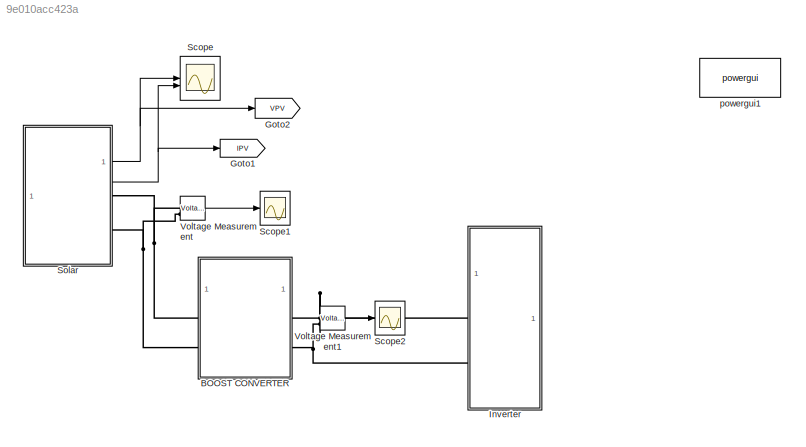
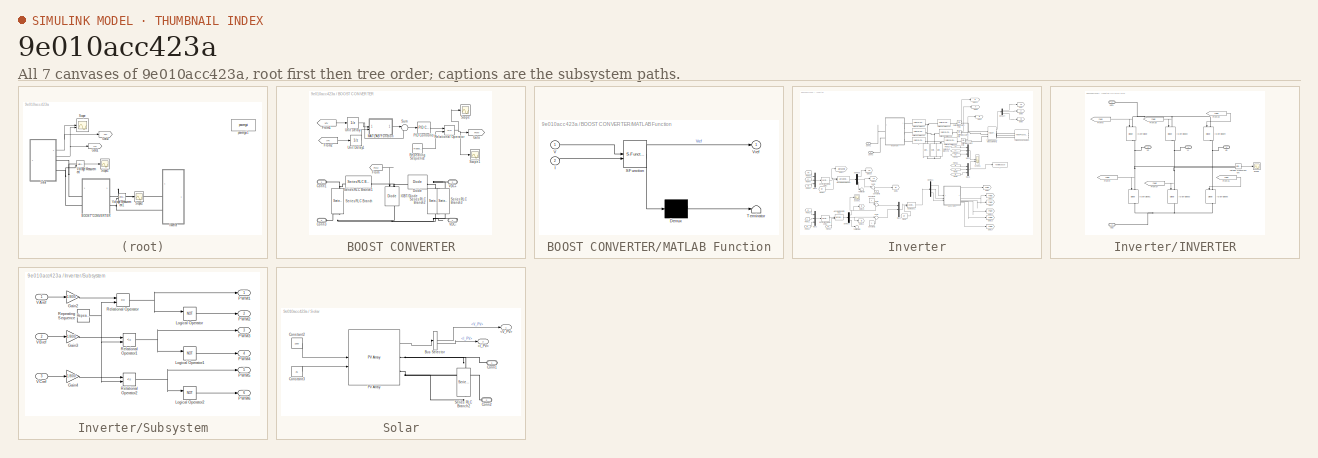
[diagram: thumbnail index - all 7 canvases of the model, root first then tree order]
MODEL slx_9e010acc423a
KIND model
CONFIG AbsTol = auto
CONFIG EnableMultiTasking = off
CONFIG FixedStep = auto
CONFIG MaxStep = auto
CONFIG MinStep = auto
CONFIG RelTol = 1e-3
CONFIG SampleTimeConstraint = Unconstrained
CONFIG SolverName = VariableStepAuto
CONFIG StartTime = 0.0
CONFIG StopTime = 1
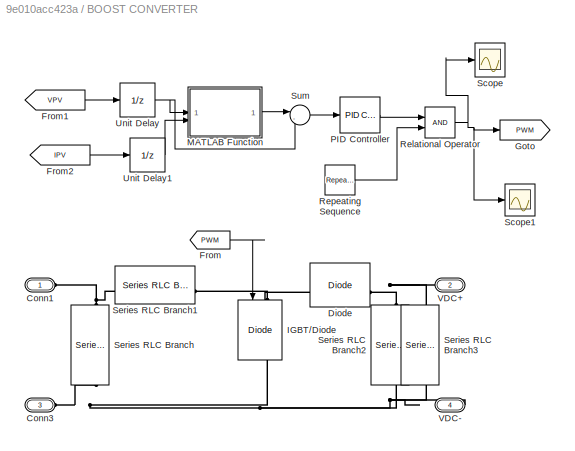
BLOCK [SubSystem] BOOST CONVERTER
BLOCK [PMIOPort] BOOST CONVERTER/Conn1
  Side = Left
BLOCK [PMIOPort] BOOST CONVERTER/Conn3
  Port = 3
  Side = Left
BLOCK [Reference] BOOST CONVERTER/Diode  REF=spsDiodeLib/Diode
  SourceBlock = spsDiodeLib/Diode
  SourceType = Diode
BLOCK [From] BOOST CONVERTER/From
  GotoTag = PWM
BLOCK [From] BOOST CONVERTER/From1
  GotoTag = VPV
  TagVisibility = global
BLOCK [From] BOOST CONVERTER/From2
  GotoTag = IPV
  TagVisibility = global
BLOCK [Goto] BOOST CONVERTER/Goto
  GotoTag = PWM
BLOCK [Reference] BOOST CONVERTER/IGBT//Diode  REF=spsIGBTDiodeLib/IGBT//Diode
  NameLocation = left
  SourceBlock = spsIGBTDiodeLib/IGBT//Diode
  SourceType = IGBT/Diode
BLOCK [SubSystem] BOOST CONVERTER/MATLAB Function
  ErrorFcn = Stateflow.Translate.translate
  PermitHierarchicalResolution = ExplicitOnly
  SFBlockType = MATLAB Function
  TreatAsAtomicUnit = on
BLOCK [Demux] BOOST CONVERTER/MATLAB Function/ Demux 
  Outputs = 1
BLOCK [S-Function] BOOST CONVERTER/MATLAB Function/ SFunction 
  EnableBusSupport = on
  FunctionName = sf_sfun
  PortCounts = [2 2]
  SFcnIsStateOwnerBlock = off
  SFunctionDeploymentMode = off
  Tag = Stateflow S-Function 3
BLOCK [Terminator] BOOST CONVERTER/MATLAB Function/ Terminator 
BLOCK [Inport] BOOST CONVERTER/MATLAB Function/I
  Port = 2
BLOCK [Inport] BOOST CONVERTER/MATLAB Function/V
BLOCK [Outport] BOOST CONVERTER/MATLAB Function/Vref
BLOCK [Reference] BOOST CONVERTER/PID Controller  REF=slpidlib/PID Controller
  SourceBlock = slpidlib/PID Controller
  SourceType = PID 1dof
BLOCK [RelationalOperator] BOOST CONVERTER/Relational Operator
  InputSameDT = off
  OutDataTypeStr = boolean
  RndMeth = Simplest
BLOCK [Reference] BOOST CONVERTER/Repeating Sequence  REF=simulink/Sources/Repeating
Sequence
  SourceBlock = simulink/Sources/Repeating\nSequence
  SourceType = Repeating table
BLOCK [Scope] BOOST CONVERTER/Scope
  Floating = off
  NumInputPorts = 1
  ScopeSpecificationString = Simulink.scopes.TimeScopeBlockCfg('CurrentConfiguration', extmgr.ConfigurationSet(extmgr.Configuration('Core','General UI',true,'FigureColor',[0.8 0.8 0.8]),extmgr.Configuration('Core','Source UI',true),extmgr.Configuration('Sources','WiredSimulink',true,'DataLoggingVariableName','ScopeData1'),extmgr.Configuration('Visuals','Time Domain',true,'TimeAxisLabels','All','SerializedDisplays',{struct('Mi...<+2594ch>
BLOCK [Scope] BOOST CONVERTER/Scope1
  Floating = off
  NumInputPorts = 1
  ScopeSpecificationString = Simulink.scopes.TimeScopeBlockCfg('CurrentConfiguration', extmgr.ConfigurationSet(extmgr.Configuration('Core','General UI',true,'FigureColor',[1 1 1]),extmgr.Configuration('Core','Source UI',true),extmgr.Configuration('Sources','WiredSimulink',true,'DataLoggingVariableName','ScopeData3'),extmgr.Configuration('Visuals','Time Domain',true,'TimeAxisLabels','All','SerializedDisplays',{struct('MinYLimR...<+1689ch>
BLOCK [Reference] BOOST CONVERTER/Series RLC Branch  REF=spsSeriesRLCBranchLib/Series RLC Branch
  NameLocation = left
  SourceBlock = spsSeriesRLCBranchLib/Series RLC Branch
  SourceType = Series RLC Branch
BLOCK [Reference] BOOST CONVERTER/Series RLC Branch1  REF=spsSeriesRLCBranchLib/Series RLC Branch
  NameLocation = top
  SourceBlock = spsSeriesRLCBranchLib/Series RLC Branch
  SourceType = Series RLC Branch
BLOCK [Reference] BOOST CONVERTER/Series RLC Branch2  REF=spsSeriesRLCBranchLib/Series RLC Branch
  NameLocation = right
  SourceBlock = spsSeriesRLCBranchLib/Series RLC Branch
  SourceType = Series RLC Branch
BLOCK [Reference] BOOST CONVERTER/Series RLC Branch3  REF=spsSeriesRLCBranchLib/Series RLC Branch
  NameLocation = right
  SourceBlock = spsSeriesRLCBranchLib/Series RLC Branch
  SourceType = Series RLC Branch
BLOCK [Sum] BOOST CONVERTER/Sum
  Inputs = |-+
BLOCK [UnitDelay] BOOST CONVERTER/Unit Delay
  HasFrameUpgradeWarning = on
  SampleTime = 1e-06
BLOCK [UnitDelay] BOOST CONVERTER/Unit Delay1
  HasFrameUpgradeWarning = on
  SampleTime = 1e-06
BLOCK [PMIOPort] BOOST CONVERTER/VDC+
  NameLocation = top
  Port = 2
  Side = Right
BLOCK [PMIOPort] BOOST CONVERTER/VDC-
  NameLocation = top
  Port = 4
  Side = Right
BLOCK [Goto] Goto1
  GotoTag = IPV
  TagVisibility = global
BLOCK [Goto] Goto2
  GotoTag = VPV
  TagVisibility = global
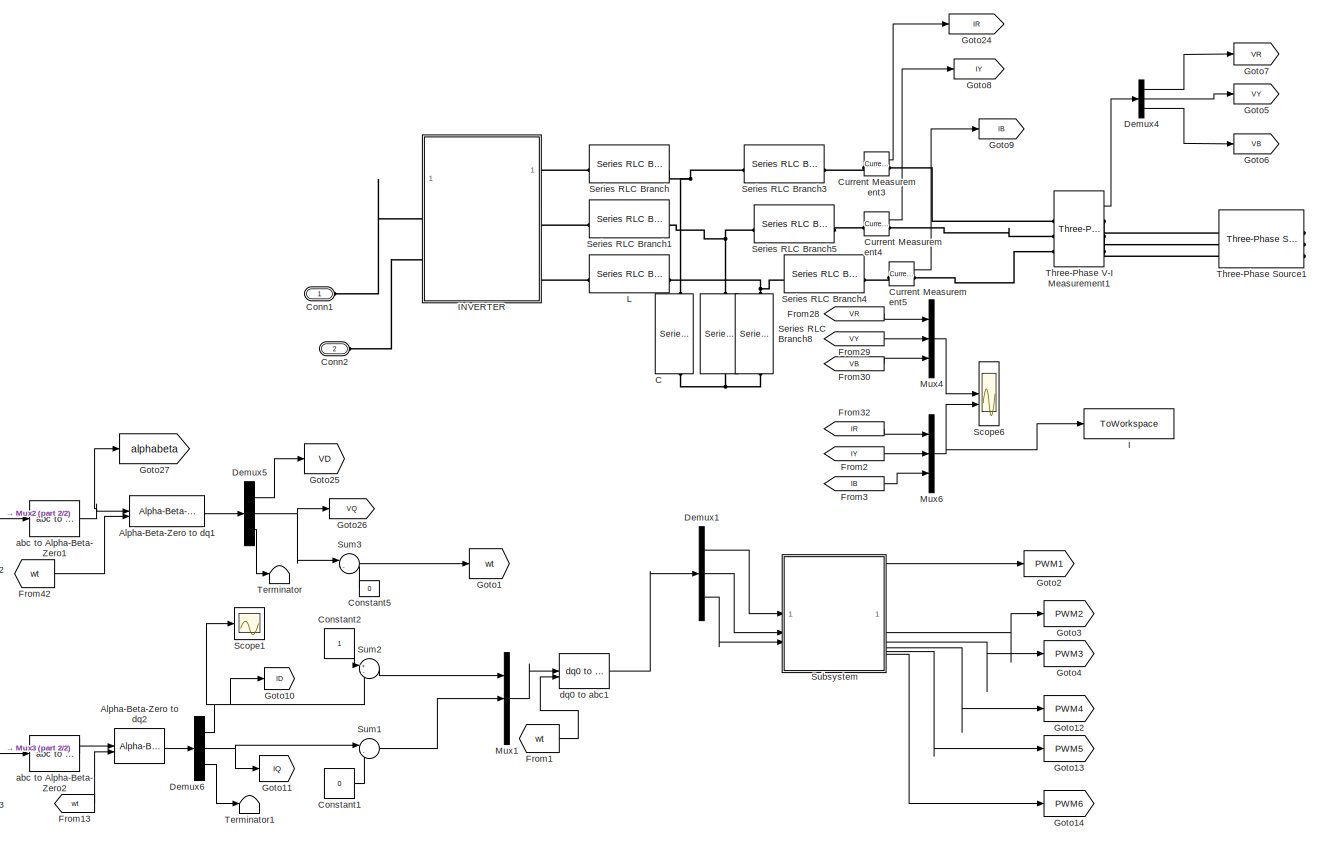
[diagram: Inverter - part 1/2, most of the canvas]
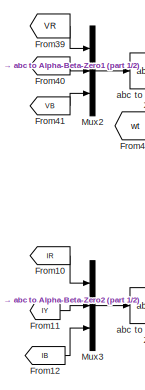
[diagram: Inverter - part 2/2, bottom left region]
BLOCK [SubSystem] Inverter
BLOCK [Reference] Inverter/   REF=spsSeriesRLCBranchLib/Series RLC Branch
  NameLocation = left
  SourceBlock = spsSeriesRLCBranchLib/Series RLC Branch
  SourceType = Series RLC Branch
BLOCK [Reference] Inverter/    C  REF=spsSeriesRLCBranchLib/Series RLC Branch
  NameLocation = left
  SourceBlock = spsSeriesRLCBranchLib/Series RLC Branch
  SourceType = Series RLC Branch
BLOCK [Reference] Inverter/Alpha-Beta-Zero to dq1  REF=spsAlphaBetaZerotodq0Lib/Alpha-Beta-Zero
to dq0
  SourceBlock = spsAlphaBetaZerotodq0Lib/Alpha-Beta-Zero\nto dq0
  SourceType = Alpha-Beta-Zero to dq0 Transformation
BLOCK [Reference] Inverter/Alpha-Beta-Zero to dq2  REF=spsAlphaBetaZerotodq0Lib/Alpha-Beta-Zero
to dq0
  SourceBlock = spsAlphaBetaZerotodq0Lib/Alpha-Beta-Zero\nto dq0
  SourceType = Alpha-Beta-Zero to dq0 Transformation
BLOCK [PMIOPort] Inverter/Conn1
  Side = Left
BLOCK [PMIOPort] Inverter/Conn2
  Port = 2
  Side = Left
BLOCK [Constant] Inverter/Constant1
  Value = 0
BLOCK [Constant] Inverter/Constant2
BLOCK [Constant] Inverter/Constant5
  Value = 0
BLOCK [Reference] Inverter/Current Measurement3  REF=spsCurrentMeasurementLib/Current Measurement
  SourceBlock = spsCurrentMeasurementLib/Current Measurement
  SourceType = Current Measurement
  UserDataPersistent = on
BLOCK [Reference] Inverter/Current Measurement4  REF=spsCurrentMeasurementLib/Current Measurement
  SourceBlock = spsCurrentMeasurementLib/Current Measurement
  SourceType = Current Measurement
  UserDataPersistent = on
BLOCK [Reference] Inverter/Current Measurement5  REF=spsCurrentMeasurementLib/Current Measurement
  SourceBlock = spsCurrentMeasurementLib/Current Measurement
  SourceType = Current Measurement
  UserDataPersistent = on
BLOCK [Demux] Inverter/Demux1
  Outputs = 3
BLOCK [Demux] Inverter/Demux4
  Outputs = 3
BLOCK [Demux] Inverter/Demux5
  Outputs = 3
BLOCK [Demux] Inverter/Demux6
  Outputs = 3
BLOCK [From] Inverter/From1
  GotoTag = wt
BLOCK [From] Inverter/From10
  GotoTag = IR
  TagVisibility = global
BLOCK [From] Inverter/From11
  GotoTag = IY
  TagVisibility = global
BLOCK [From] Inverter/From12
  GotoTag = IB
  TagVisibility = global
BLOCK [From] Inverter/From13
  GotoTag = wt
BLOCK [From] Inverter/From2
  GotoTag = IY
  TagVisibility = global
BLOCK [From] Inverter/From28
  GotoTag = VR
  TagVisibility = global
BLOCK [From] Inverter/From29
  GotoTag = VY
  TagVisibility = global
BLOCK [From] Inverter/From3
  GotoTag = IB
  TagVisibility = global
BLOCK [From] Inverter/From30
  GotoTag = VB
  TagVisibility = global
BLOCK [From] Inverter/From32
  GotoTag = IR
  TagVisibility = global
BLOCK [From] Inverter/From39
  GotoTag = VR
  TagVisibility = global
BLOCK [From] Inverter/From40
  GotoTag = VY
  TagVisibility = global
BLOCK [From] Inverter/From41
  GotoTag = VB
  TagVisibility = global
BLOCK [From] Inverter/From42
  GotoTag = wt
BLOCK [Goto] Inverter/Goto1
  GotoTag = wt
BLOCK [Goto] Inverter/Goto10
  GotoTag = ID
BLOCK [Goto] Inverter/Goto11
  GotoTag = IQ
BLOCK [Goto] Inverter/Goto12
  GotoTag = PWM4
BLOCK [Goto] Inverter/Goto13
  GotoTag = PWM5
BLOCK [Goto] Inverter/Goto14
  GotoTag = PWM6
BLOCK [Goto] Inverter/Goto2
  GotoTag = PWM1
BLOCK [Goto] Inverter/Goto24
  GotoTag = IR
  TagVisibility = global
BLOCK [Goto] Inverter/Goto25
  GotoTag = VD
BLOCK [Goto] Inverter/Goto26
  GotoTag = VQ
BLOCK [Goto] Inverter/Goto27
  GotoTag = alphabeta
BLOCK [Goto] Inverter/Goto3
  GotoTag = PWM2
BLOCK [Goto] Inverter/Goto4
  GotoTag = PWM3
BLOCK [Goto] Inverter/Goto5
  GotoTag = VY
  TagVisibility = global
BLOCK [Goto] Inverter/Goto6
  GotoTag = VB
  TagVisibility = global
BLOCK [Goto] Inverter/Goto7
  GotoTag = VR
  TagVisibility = global
BLOCK [Goto] Inverter/Goto8
  GotoTag = IY
  TagVisibility = global
BLOCK [Goto] Inverter/Goto9
  GotoTag = IB
  TagVisibility = global
BLOCK [ToWorkspace] Inverter/I
  FixptAsFi = on
  MaxDataPoints = inf
  SampleTime = -1
  SaveFormat = Timeseries
  VariableName = simout
BLOCK [SubSystem] Inverter/INVERTER
BLOCK [From] Inverter/INVERTER/From20
  GotoTag = PWM3
BLOCK [From] Inverter/INVERTER/From31
  GotoTag = PWM4
BLOCK [From] Inverter/INVERTER/From37
  GotoTag = PWM6
BLOCK [From] Inverter/INVERTER/From38
  GotoTag = PWM5
BLOCK [From] Inverter/INVERTER/From8
  GotoTag = PWM1
BLOCK [From] Inverter/INVERTER/From9
  GotoTag = PWM2
BLOCK [Reference] Inverter/INVERTER/IGBT//Diode  REF=spsIGBTDiodeLib/IGBT//Diode
  NameLocation = left
  SourceBlock = spsIGBTDiodeLib/IGBT//Diode
  SourceType = IGBT/Diode
BLOCK [Reference] Inverter/INVERTER/IGBT//Diode1  REF=spsIGBTDiodeLib/IGBT//Diode
  NameLocation = left
  SourceBlock = spsIGBTDiodeLib/IGBT//Diode
  SourceType = IGBT/Diode
BLOCK [Reference] Inverter/INVERTER/IGBT//Diode2  REF=spsIGBTDiodeLib/IGBT//Diode
  NameLocation = left
  SourceBlock = spsIGBTDiodeLib/IGBT//Diode
  SourceType = IGBT/Diode
BLOCK [Reference] Inverter/INVERTER/IGBT//Diode3  REF=spsIGBTDiodeLib/IGBT//Diode
  NameLocation = left
  SourceBlock = spsIGBTDiodeLib/IGBT//Diode
  SourceType = IGBT/Diode
BLOCK [Reference] Inverter/INVERTER/IGBT//Diode4  REF=spsIGBTDiodeLib/IGBT//Diode
  NameLocation = left
  SourceBlock = spsIGBTDiodeLib/IGBT//Diode
  SourceType = IGBT/Diode
BLOCK [Reference] Inverter/INVERTER/IGBT//Diode5  REF=spsIGBTDiodeLib/IGBT//Diode
  NameLocation = left
  SourceBlock = spsIGBTDiodeLib/IGBT//Diode
  SourceType = IGBT/Diode
BLOCK [Scope] Inverter/INVERTER/Scope
  Floating = off
  NumInputPorts = 1
  ScopeSpecificationString = Simulink.scopes.TimeScopeBlockCfg('CurrentConfiguration', extmgr.ConfigurationSet(extmgr.Configuration('Core','General UI',true,'FigureColor',[0.8 0.8 0.8]),extmgr.Configuration('Core','Source UI',true),extmgr.Configuration('Sources','WiredSimulink',true,'DataLoggingVariableName','ScopeData2'),extmgr.Configuration('Visuals','Time Domain',true,'TimeAxisLabels','All','SerializedDisplays',{struct('Mi...<+2425ch>
BLOCK [PMIOPort] Inverter/INVERTER/VB
  NameLocation = top
  Port = 5
  Side = Right
BLOCK [PMIOPort] Inverter/INVERTER/VDC+
  Side = Left
BLOCK [PMIOPort] Inverter/INVERTER/VDC-
  Port = 2
  Side = Left
BLOCK [PMIOPort] Inverter/INVERTER/VR
  NameLocation = top
  Port = 3
  Side = Right
BLOCK [PMIOPort] Inverter/INVERTER/VY
  NameLocation = top
  Port = 4
  Side = Right
BLOCK [Reference] Inverter/INVERTER/Voltage Measurement  REF=spsVoltageMeasurementLib/Voltage Measurement
  SourceBlock = spsVoltageMeasurementLib/Voltage Measurement
  SourceType = Voltage Measurement
  UserDataPersistent = on
BLOCK [Reference] Inverter/L  REF=spsSeriesRLCBranchLib/Series RLC Branch
  SourceBlock = spsSeriesRLCBranchLib/Series RLC Branch
  SourceType = Series RLC Branch
BLOCK [Mux] Inverter/Mux1
  DisplayOption = bar
  Inputs = 3
BLOCK [Mux] Inverter/Mux2
  DisplayOption = bar
  Inputs = 3
BLOCK [Mux] Inverter/Mux3
  DisplayOption = bar
  Inputs = 3
BLOCK [Mux] Inverter/Mux4
  DisplayOption = bar
  Inputs = 3
BLOCK [Mux] Inverter/Mux6
  DisplayOption = bar
  Inputs = 3
BLOCK [Scope] Inverter/Scope1
  Floating = off
  NumInputPorts = 1
  ScopeSpecificationString = Simulink.scopes.TimeScopeBlockCfg('CurrentConfiguration', extmgr.ConfigurationSet(extmgr.Configuration('Core','General UI',true,'FigureColor',[0.8 0.8 0.8]),extmgr.Configuration('Core','Source UI',true),extmgr.Configuration('Sources','WiredSimulink',true,'DataLoggingVariableName','ScopeData2'),extmgr.Configuration('Visuals','Time Domain',true,'SerializedDisplays',{struct('MinYLimReal','-0.6946','M...<+2437ch>
BLOCK [Scope] Inverter/Scope6
  Floating = off
  NumInputPorts = 2
  ScopeSpecificationString = Simulink.scopes.TimeScopeBlockCfg('CurrentConfiguration', extmgr.ConfigurationSet(extmgr.Configuration('Core','General UI',true,'FigureColor',[0.831372549019608 0.815686274509804 0.784313725490196]),extmgr.Configuration('Core','Source UI',true),extmgr.Configuration('Sources','WiredSimulink',true,'DataLoggingVariableName','ScopeData1','DataLogging',true,'DataLoggingLimitDataPoints',true,'DataLoggin...<+3200ch>
BLOCK [Reference] Inverter/Series RLC Branch  REF=spsSeriesRLCBranchLib/Series RLC Branch
  SourceBlock = spsSeriesRLCBranchLib/Series RLC Branch
  SourceType = Series RLC Branch
BLOCK [Reference] Inverter/Series RLC Branch1  REF=spsSeriesRLCBranchLib/Series RLC Branch
  SourceBlock = spsSeriesRLCBranchLib/Series RLC Branch
  SourceType = Series RLC Branch
BLOCK [Reference] Inverter/Series RLC Branch3  REF=spsSeriesRLCBranchLib/Series RLC Branch
  SourceBlock = spsSeriesRLCBranchLib/Series RLC Branch
  SourceType = Series RLC Branch
BLOCK [Reference] Inverter/Series RLC Branch4  REF=spsSeriesRLCBranchLib/Series RLC Branch
  SourceBlock = spsSeriesRLCBranchLib/Series RLC Branch
  SourceType = Series RLC Branch
BLOCK [Reference] Inverter/Series RLC Branch5  REF=spsSeriesRLCBranchLib/Series RLC Branch
  SourceBlock = spsSeriesRLCBranchLib/Series RLC Branch
  SourceType = Series RLC Branch
BLOCK [Reference] Inverter/Series RLC Branch8  REF=spsSeriesRLCBranchLib/Series RLC Branch
  NameLocation = left
  SourceBlock = spsSeriesRLCBranchLib/Series RLC Branch
  SourceType = Series RLC Branch
BLOCK [SubSystem] Inverter/Subsystem
BLOCK [Gain] Inverter/Subsystem/Gain2
  Gain = 1/800
BLOCK [Gain] Inverter/Subsystem/Gain3
  Gain = 1/800
BLOCK [Gain] Inverter/Subsystem/Gain4
  Gain = 1/800
BLOCK [Logic] Inverter/Subsystem/Logical Operator
  AllPortsSameDT = off
  Operator = NOT
  OutDataTypeStr = boolean
BLOCK [Logic] Inverter/Subsystem/Logical Operator1
  AllPortsSameDT = off
  Operator = NOT
  OutDataTypeStr = boolean
BLOCK [Logic] Inverter/Subsystem/Logical Operator2
  AllPortsSameDT = off
  Operator = NOT
  OutDataTypeStr = boolean
BLOCK [Outport] Inverter/Subsystem/PWM1
BLOCK [Outport] Inverter/Subsystem/PWM2
  Port = 2
BLOCK [Outport] Inverter/Subsystem/PWM3
  Port = 3
BLOCK [Outport] Inverter/Subsystem/PWM4
  Port = 4
BLOCK [Outport] Inverter/Subsystem/PWM5
  Port = 5
BLOCK [Outport] Inverter/Subsystem/PWM6
  Port = 6
BLOCK [RelationalOperator] Inverter/Subsystem/Relational Operator
  InputSameDT = off
  Operator = <=
  OutDataTypeStr = boolean
  RndMeth = Simplest
BLOCK [RelationalOperator] Inverter/Subsystem/Relational Operator1
  InputSameDT = off
  Operator = <=
  OutDataTypeStr = boolean
  RndMeth = Simplest
BLOCK [RelationalOperator] Inverter/Subsystem/Relational Operator2
  InputSameDT = off
  Operator = <=
  OutDataTypeStr = boolean
  RndMeth = Simplest
BLOCK [Reference] Inverter/Subsystem/Repeating Sequence  REF=simulink/Sources/Repeating
Sequence
  SourceBlock = simulink/Sources/Repeating\nSequence
  SourceType = Repeating table
BLOCK [Inport] Inverter/Subsystem/VAref
BLOCK [Inport] Inverter/Subsystem/VBref
  Port = 2
BLOCK [Inport] Inverter/Subsystem/VCref
  Port = 3
BLOCK [Sum] Inverter/Sum1
  Inputs = |-+
BLOCK [Sum] Inverter/Sum2
  Inputs = +-
BLOCK [Sum] Inverter/Sum3
  Inputs = |-+
BLOCK [Terminator] Inverter/Terminator
BLOCK [Terminator] Inverter/Terminator1
BLOCK [Reference] Inverter/Three-Phase Source1  REF=spsThreePhaseSourceLib/Three-Phase Source
  NameLocation = top
  SourceBlock = spsThreePhaseSourceLib/Three-Phase Source
  SourceType = Three-Phase Source
BLOCK [Reference] Inverter/Three-Phase V-I Measurement1  REF=spsThreePhaseVIMeasurementLib/Three-Phase
V-I Measurement
  SourceBlock = spsThreePhaseVIMeasurementLib/Three-Phase\nV-I Measurement
  SourceType = Three-Phase VI Measurement
BLOCK [Reference] Inverter/abc to Alpha-Beta-Zero1  REF=spsabctoAlphaBetaZeroLib/abc to
Alpha-Beta-Zero
  SourceBlock = spsabctoAlphaBetaZeroLib/abc to\nAlpha-Beta-Zero
  SourceType = abc to Alpha-Beta-Zero Transformation
BLOCK [Reference] Inverter/abc to Alpha-Beta-Zero2  REF=spsabctoAlphaBetaZeroLib/abc to
Alpha-Beta-Zero
  SourceBlock = spsabctoAlphaBetaZeroLib/abc to\nAlpha-Beta-Zero
  SourceType = abc to Alpha-Beta-Zero Transformation
BLOCK [Reference] Inverter/dq0 to abc1  REF=spsdq0toabcLib/dq0 to abc
  SourceBlock = spsdq0toabcLib/dq0 to abc
  SourceType = dq0 to abc Transformation
BLOCK [Scope] Scope
  Floating = off
  NumInputPorts = 2
  ScopeSpecificationString = Simulink.scopes.TimeScopeBlockCfg('CurrentConfiguration', extmgr.ConfigurationSet(extmgr.Configuration('Core','General UI',true,'FigureColor',[0.8 0.8 0.8]),extmgr.Configuration('Core','Source UI',true),extmgr.Configuration('Sources','WiredSimulink',true),extmgr.Configuration('Visuals','Time Domain',true,'TimeAxisLabels','All','SerializedDisplays',{struct('MinYLimReal','-36.38604','MaxYLimReal','3...<+2991ch>
BLOCK [Scope] Scope1
  Floating = off
  NumInputPorts = 1
  ScopeSpecificationString = Simulink.scopes.TimeScopeBlockCfg('CurrentConfiguration', extmgr.ConfigurationSet(extmgr.Configuration('Core','General UI',true,'FigureColor',[0.8 0.8 0.8]),extmgr.Configuration('Core','Source UI',true),extmgr.Configuration('Sources','WiredSimulink',true,'DataLoggingVariableName','ScopeData1'),extmgr.Configuration('Visuals','Time Domain',true,'TimeAxisLabels','All','SerializedDisplays',{struct('Mi...<+2610ch>
BLOCK [Scope] Scope2
  Floating = off
  NumInputPorts = 1
  ScopeSpecificationString = Simulink.scopes.TimeScopeBlockCfg('CurrentConfiguration', extmgr.ConfigurationSet(extmgr.Configuration('Core','General UI',true,'FigureColor',[0.8 0.8 0.8]),extmgr.Configuration('Core','Source UI',true),extmgr.Configuration('Sources','WiredSimulink',true,'DataLoggingVariableName','ScopeData1'),extmgr.Configuration('Visuals','Time Domain',true,'TimeAxisLabels','All','SerializedDisplays',{struct('Mi...<+2561ch>
BLOCK [SubSystem] Solar
BLOCK [Outport] Solar/<I_PV>
  Port = 2
BLOCK [Outport] Solar/<V_PV>
BLOCK [BusSelector] Solar/Bus Selector
  OutputSignals = V_PV,I_PV
BLOCK [PMIOPort] Solar/Conn1
  Side = Right
BLOCK [PMIOPort] Solar/Conn2
  Port = 2
  Side = Right
BLOCK [Constant] Solar/Constant2
  Value = 1000
BLOCK [Constant] Solar/Constant3
  Value = 25
BLOCK [Reference] Solar/PV Array  REF=spsPVArrayLib/PV Array
  SourceBlock = spsPVArrayLib/PV Array
  SourceType = PV array
BLOCK [Reference] Solar/Series RLC Branch2  REF=spsSeriesRLCBranchLib/Series RLC Branch
  NameLocation = left
  SourceBlock = spsSeriesRLCBranchLib/Series RLC Branch
  SourceType = Series RLC Branch
BLOCK [Reference] Voltage Measurement  REF=spsVoltageMeasurementLib/Voltage Measurement
  SourceBlock = spsVoltageMeasurementLib/Voltage Measurement
  SourceType = Voltage Measurement
  UserDataPersistent = on
BLOCK [Reference] Voltage Measurement1  REF=spsVoltageMeasurementLib/Voltage Measurement
  SourceBlock = spsVoltageMeasurementLib/Voltage Measurement
  SourceType = Voltage Measurement
  UserDataPersistent = on
BLOCK [Reference] powergui1  REF=spspowerguiLib/powergui
  Priority = 1
  SourceBlock = spspowerguiLib/powergui
  SourceType = PSB option menu block
LINE BOOST CONVERTER/From1:1 -> BOOST CONVERTER/Unit Delay:1
LINE BOOST CONVERTER/From2:1 -> BOOST CONVERTER/Unit Delay1:1
LINE BOOST CONVERTER/From:1 -> BOOST CONVERTER/IGBT//Diode:1
LINE BOOST CONVERTER/MATLAB Function:1 -> BOOST CONVERTER/Sum:1
LINE BOOST CONVERTER/PID Controller:1 -> BOOST CONVERTER/Relational Operator:1
NET BOOST CONVERTER/Relational Operator:1 -> BOOST CONVERTER/Goto:1, BOOST CONVERTER/Scope1:1, BOOST CONVERTER/Scope:1
LINE BOOST CONVERTER/Repeating Sequence:1 -> BOOST CONVERTER/Relational Operator:2
LINE BOOST CONVERTER/Sum:1 -> BOOST CONVERTER/PID Controller:1
LINE BOOST CONVERTER/Unit Delay1:1 -> BOOST CONVERTER/MATLAB Function:2
NET BOOST CONVERTER/Unit Delay:1 -> BOOST CONVERTER/MATLAB Function:1, BOOST CONVERTER/Sum:2
LINE Inverter/Alpha-Beta-Zero to dq1:1 -> Inverter/Demux5:1
LINE Inverter/Alpha-Beta-Zero to dq2:1 -> Inverter/Demux6:1
LINE Inverter/Constant1:1 -> Inverter/Sum1:2
LINE Inverter/Constant2:1 -> Inverter/Sum2:1
LINE Inverter/Constant5:1 -> Inverter/Sum3:2
LINE Inverter/Current Measurement3:1 -> Inverter/Goto24:1
LINE Inverter/Current Measurement4:1 -> Inverter/Goto8:1
LINE Inverter/Current Measurement5:1 -> Inverter/Goto9:1
LINE Inverter/Demux1:1 -> Inverter/Subsystem:1
LINE Inverter/Demux1:2 -> Inverter/Subsystem:2
LINE Inverter/Demux1:3 -> Inverter/Subsystem:3
LINE Inverter/Demux4:1 -> Inverter/Goto7:1
LINE Inverter/Demux4:2 -> Inverter/Goto5:1
LINE Inverter/Demux4:3 -> Inverter/Goto6:1
LINE Inverter/Demux5:1 -> Inverter/Goto25:1
NET Inverter/Demux5:2 -> Inverter/Goto26:1, Inverter/Sum3:1
LINE Inverter/Demux5:3 -> Inverter/Terminator:1
NET Inverter/Demux6:1 -> Inverter/Goto10:1, Inverter/Scope1:1, Inverter/Sum2:2
NET Inverter/Demux6:2 -> Inverter/Goto11:1, Inverter/Sum1:1
LINE Inverter/Demux6:3 -> Inverter/Terminator1:1
LINE Inverter/From10:1 -> Inverter/Mux3:1
LINE Inverter/From11:1 -> Inverter/Mux3:2
LINE Inverter/From12:1 -> Inverter/Mux3:3
LINE Inverter/From13:1 -> Inverter/Alpha-Beta-Zero to dq2:2
LINE Inverter/From1:1 -> Inverter/dq0 to abc1:2
LINE Inverter/From28:1 -> Inverter/Mux4:1
LINE Inverter/From29:1 -> Inverter/Mux4:2
LINE Inverter/From2:1 -> Inverter/Mux6:2
LINE Inverter/From30:1 -> Inverter/Mux4:3
LINE Inverter/From32:1 -> Inverter/Mux6:1
LINE Inverter/From39:1 -> Inverter/Mux2:1
LINE Inverter/From3:1 -> Inverter/Mux6:3
LINE Inverter/From40:1 -> Inverter/Mux2:2
LINE Inverter/From41:1 -> Inverter/Mux2:3
LINE Inverter/From42:1 -> Inverter/Alpha-Beta-Zero to dq1:2
LINE Inverter/INVERTER/From20:1 -> Inverter/INVERTER/IGBT//Diode4:1
LINE Inverter/INVERTER/From31:1 -> Inverter/INVERTER/IGBT//Diode5:1
LINE Inverter/INVERTER/From37:1 -> Inverter/INVERTER/IGBT//Diode3:1
LINE Inverter/INVERTER/From38:1 -> Inverter/INVERTER/IGBT//Diode2:1
LINE Inverter/INVERTER/From8:1 -> Inverter/INVERTER/IGBT//Diode:1
LINE Inverter/INVERTER/From9:1 -> Inverter/INVERTER/IGBT//Diode1:1
LINE Inverter/INVERTER/Voltage Measurement:1 -> Inverter/INVERTER/Scope:1
LINE Inverter/Mux1:1 -> Inverter/dq0 to abc1:1
LINE Inverter/Mux2:1 -> Inverter/abc to Alpha-Beta-Zero1:1
LINE Inverter/Mux3:1 -> Inverter/abc to Alpha-Beta-Zero2:1
LINE Inverter/Mux4:1 -> Inverter/Scope6:1
NET Inverter/Mux6:1 -> Inverter/I:1, Inverter/Scope6:2
LINE Inverter/Subsystem/Gain2:1 -> Inverter/Subsystem/Relational Operator:1
LINE Inverter/Subsystem/Gain3:1 -> Inverter/Subsystem/Relational Operator1:1
LINE Inverter/Subsystem/Gain4:1 -> Inverter/Subsystem/Relational Operator2:1
LINE Inverter/Subsystem/Logical Operator1:1 -> Inverter/Subsystem/PWM4:1
LINE Inverter/Subsystem/Logical Operator2:1 -> Inverter/Subsystem/PWM6:1
LINE Inverter/Subsystem/Logical Operator:1 -> Inverter/Subsystem/PWM2:1
NET Inverter/Subsystem/Relational Operator1:1 -> Inverter/Subsystem/Logical Operator1:1, Inverter/Subsystem/PWM3:1
NET Inverter/Subsystem/Relational Operator2:1 -> Inverter/Subsystem/Logical Operator2:1, Inverter/Subsystem/PWM5:1
NET Inverter/Subsystem/Relational Operator:1 -> Inverter/Subsystem/Logical Operator:1, Inverter/Subsystem/PWM1:1
NET Inverter/Subsystem/Repeating Sequence:1 -> Inverter/Subsystem/Relational Operator1:2, Inverter/Subsystem/Relational Operator2:2, Inverter/Subsystem/Relational Operator:2
LINE Inverter/Subsystem/VAref:1 -> Inverter/Subsystem/Gain2:1
LINE Inverter/Subsystem/VBref:1 -> Inverter/Subsystem/Gain3:1
LINE Inverter/Subsystem/VCref:1 -> Inverter/Subsystem/Gain4:1
LINE Inverter/Subsystem:1 -> Inverter/Goto2:1
LINE Inverter/Subsystem:2 -> Inverter/Goto3:1
LINE Inverter/Subsystem:3 -> Inverter/Goto4:1
LINE Inverter/Subsystem:4 -> Inverter/Goto12:1
LINE Inverter/Subsystem:5 -> Inverter/Goto13:1
LINE Inverter/Subsystem:6 -> Inverter/Goto14:1
LINE Inverter/Sum1:1 -> Inverter/Mux1:2
LINE Inverter/Sum2:1 -> Inverter/Mux1:1
LINE Inverter/Sum3:1 -> Inverter/Goto1:1
LINE Inverter/Three-Phase V-I Measurement1:1 -> Inverter/Demux4:1
NET Inverter/abc to Alpha-Beta-Zero1:1 -> Inverter/Alpha-Beta-Zero to dq1:1, Inverter/Goto27:1
LINE Inverter/abc to Alpha-Beta-Zero2:1 -> Inverter/Alpha-Beta-Zero to dq2:1
LINE Inverter/dq0 to abc1:1 -> Inverter/Demux1:1
LINE Solar/Bus Selector:1 -> Solar/<V_PV>:1
LINE Solar/Bus Selector:2 -> Solar/<I_PV>:1
LINE Solar/Constant2:1 -> Solar/PV Array:1
LINE Solar/Constant3:1 -> Solar/PV Array:2
LINE Solar/PV Array:1 -> Solar/Bus Selector:1
NET Solar:1 -> Goto2:1, Scope:1
NET Solar:2 -> Goto1:1, Scope:2
LINE Voltage Measurement1:1 -> Scope2:1
LINE Voltage Measurement:1 -> Scope1:1
PNET net1: BOOST CONVERTER/Conn1:RConn1 -- BOOST CONVERTER/Series RLC Branch1:RConn1 -- BOOST CONVERTER/Series RLC Branch:LConn1
PNET net2: BOOST CONVERTER/Conn3:RConn1 -- BOOST CONVERTER/IGBT//Diode:RConn1 -- BOOST CONVERTER/Series RLC Branch2:LConn1 -- BOOST CONVERTER/Series RLC Branch3:LConn1 -- BOOST CONVERTER/Series RLC Branch:RConn1 -- BOOST CONVERTER/VDC-:RConn1
PNET net3: BOOST CONVERTER/Diode:LConn1 -- BOOST CONVERTER/IGBT//Diode:LConn1 -- BOOST CONVERTER/Series RLC Branch1:LConn1
PNET net4: BOOST CONVERTER/Diode:RConn1 -- BOOST CONVERTER/Series RLC Branch2:RConn1 -- BOOST CONVERTER/Series RLC Branch3:RConn1 -- BOOST CONVERTER/VDC+:RConn1
PNET net5: BOOST CONVERTER:LConn1 -- Solar:RConn1 -- Voltage Measurement:LConn1
PNET net6: BOOST CONVERTER:LConn2 -- Solar:RConn2 -- Voltage Measurement:LConn2
PNET net7: BOOST CONVERTER:RConn1 -- Inverter:LConn1 -- Voltage Measurement1:LConn1
PNET net8: BOOST CONVERTER:RConn2 -- Inverter:LConn2 -- Voltage Measurement1:LConn2
PNET net9: Inverter/    C:LConn1 -- Inverter/Series RLC Branch3:LConn1 -- Inverter/Series RLC Branch:RConn1
PNET net10: Inverter/    C:RConn1 -- Inverter/ :RConn1 -- Inverter/Series RLC Branch8:RConn1
PNET net11: Inverter/ :LConn1 -- Inverter/Series RLC Branch1:RConn1 -- Inverter/Series RLC Branch5:LConn1
PLINE Inverter/Conn1:RConn1 -- Inverter/INVERTER:LConn1
PLINE Inverter/Conn2:RConn1 -- Inverter/INVERTER:LConn2
PLINE Inverter/Current Measurement3:LConn1 -- Inverter/Series RLC Branch3:RConn1
PLINE Inverter/Current Measurement3:RConn1 -- Inverter/Three-Phase V-I Measurement1:LConn1
PLINE Inverter/Current Measurement4:LConn1 -- Inverter/Series RLC Branch5:RConn1
PLINE Inverter/Current Measurement4:RConn1 -- Inverter/Three-Phase V-I Measurement1:LConn2
PLINE Inverter/Current Measurement5:LConn1 -- Inverter/Series RLC Branch4:RConn1
PLINE Inverter/Current Measurement5:RConn1 -- Inverter/Three-Phase V-I Measurement1:LConn3
PNET net12: Inverter/INVERTER/IGBT//Diode1:LConn1 -- Inverter/INVERTER/IGBT//Diode:RConn1 -- Inverter/INVERTER/VR:RConn1 -- Inverter/INVERTER/Voltage Measurement:LConn1
PNET net13: Inverter/INVERTER/IGBT//Diode1:RConn1 -- Inverter/INVERTER/IGBT//Diode3:RConn1 -- Inverter/INVERTER/IGBT//Diode5:RConn1 -- Inverter/INVERTER/VDC-:RConn1
PNET net14: Inverter/INVERTER/IGBT//Diode2:LConn1 -- Inverter/INVERTER/IGBT//Diode4:LConn1 -- Inverter/INVERTER/IGBT//Diode:LConn1 -- Inverter/INVERTER/VDC+:RConn1
PNET net15: Inverter/INVERTER/IGBT//Diode2:RConn1 -- Inverter/INVERTER/IGBT//Diode3:LConn1 -- Inverter/INVERTER/VY:RConn1 -- Inverter/INVERTER/Voltage Measurement:LConn2
PNET net16: Inverter/INVERTER/IGBT//Diode4:RConn1 -- Inverter/INVERTER/IGBT//Diode5:LConn1 -- Inverter/INVERTER/VB:RConn1
PLINE Inverter/INVERTER:RConn1 -- Inverter/Series RLC Branch:LConn1
PLINE Inverter/INVERTER:RConn2 -- Inverter/Series RLC Branch1:LConn1
PLINE Inverter/INVERTER:RConn3 -- Inverter/L:LConn1
PNET net17: Inverter/L:RConn1 -- Inverter/Series RLC Branch4:LConn1 -- Inverter/Series RLC Branch8:LConn1
PLINE Inverter/Three-Phase Source1:RConn1 -- Inverter/Three-Phase V-I Measurement1:RConn3
PLINE Inverter/Three-Phase Source1:RConn2 -- Inverter/Three-Phase V-I Measurement1:RConn2
PLINE Inverter/Three-Phase Source1:RConn3 -- Inverter/Three-Phase V-I Measurement1:RConn1
PNET net18: Solar/Conn1:RConn1 -- Solar/PV Array:RConn1 -- Solar/Series RLC Branch2:LConn1
PNET net19: Solar/Conn2:RConn1 -- Solar/PV Array:RConn2 -- Solar/Series RLC Branch2:RConn1
note: NET lines group one-source signal fan-out (src -> all destinations, sorted); 1:1 wires keep LINE; PNET lines group multi-terminal physical nets as a canonical sorted terminal list (undirected conserving connections); 2-terminal nets keep the pairwise PLINE form
CHART BOOST CONVERTER/MATLAB Function states=1 transitions=1
  STATE_LABEL 'eML_blk_kernel()'
  STATE_LABEL "SCRIPT:\nfunction Vref = RefGen(V,I)\n\nVrefmax = 363;\nVrefmin = 0;\nVrefinit = 300;\ndeltaVref = 1;\npersistent Vold Pold Vrefold;\n\ndataType = 'double';\n\nif isempty(Vold)\n    Vold = 0;\n    Pold = 0;\n    Vrefold = Vrefinit;\nend\n\nP = V*I;\ndV = V - Vold;\ndP = P - Pold;\n \nif dP ~= 0\n    if dP<0\n        if dV<0\n            Vref = Vrefold + deltaVref;\n        else\n            Vref = Vrefold - deltaVref;\n    ...<+275ch>"
CHART  states=0 transitions=0
